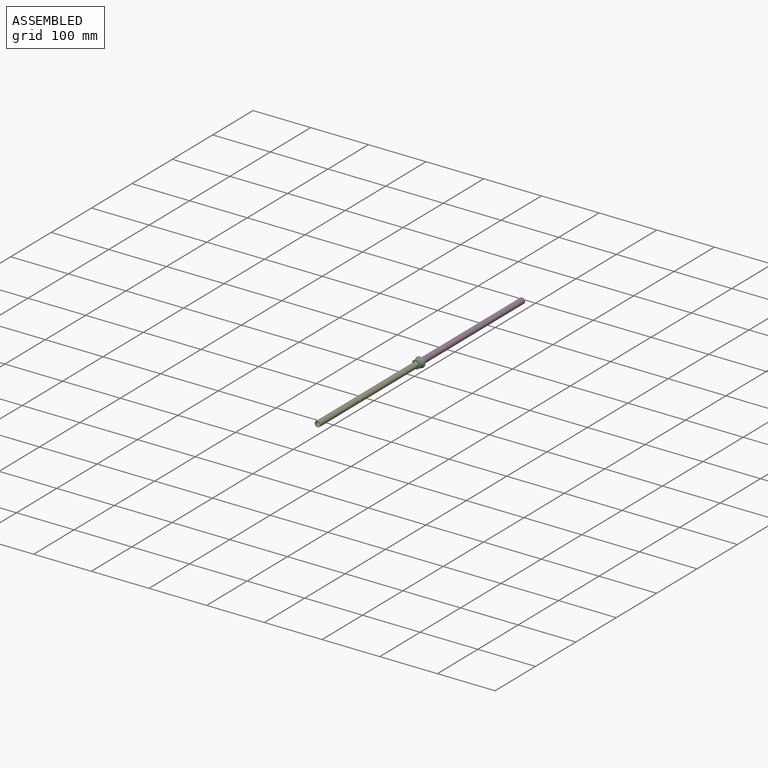
[diagram: assembled view]
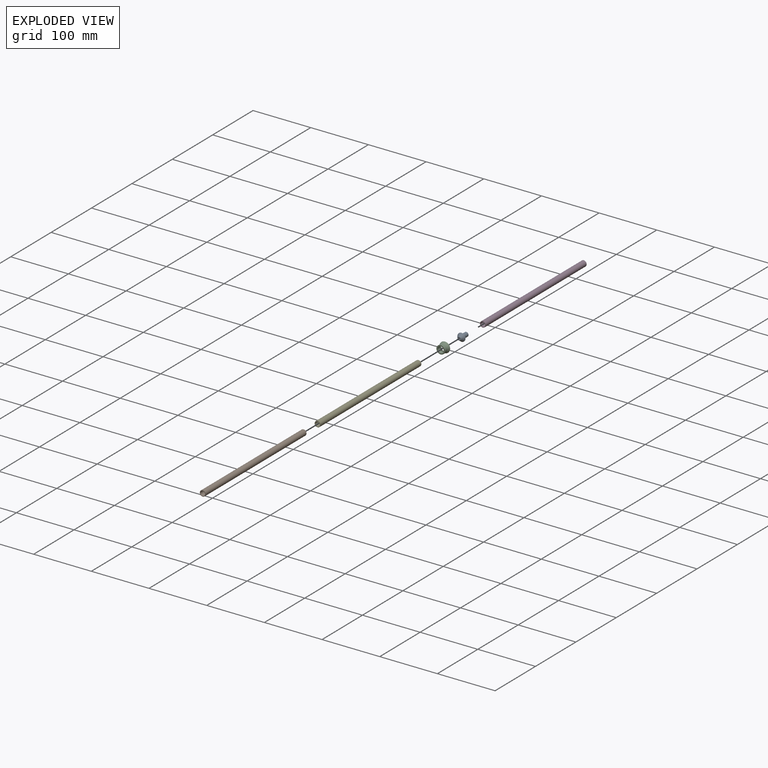
[diagram: exploded view]
GUIDED TOUR — FREECAD ASSEMBLY "banderole_elastique"

This assembly has 5 components, labeled P0..P4 below (a component is one placed body or linked part; the same part can appear more than once), held together by 0 modeled joints plus 10 derived contact edges. A joint is a constraint between two components; its type names the relative motion it leaves free:
  CONTACT — a derived adjacency edge — the two components touch in the source model (clearance under 2% of the assembly's diagonal); it is measured from the geometry, not a modeled constraint.
Axis/direction vectors are unit vectors and 'through' points are millimeter coordinates, both in the assembly's world frame.

MATES
  1. CONTACT "contact_0_1": P0 <-> P1, contact direction (0.000, -1.000, 0.000) through (0.47, 10.00, -3.72) mm (derived from contact, not a modeled constraint)
  2. CONTACT "contact_0_2": P0 <-> P2, contact direction (0.000, -1.000, 0.000) through (-7.10, 14.96, -0.35) mm (derived from contact, not a modeled constraint)
  3. CONTACT "contact_0_3": P0 <-> P3, contact direction (0.000, 1.000, 0.000) through (2.72, 16.00, 2.79) mm (derived from contact, not a modeled constraint)
  4. CONTACT "contact_0_4": P0 <-> P4, contact direction (0.000, -1.000, 0.000) through (0.47, 10.00, -3.72) mm (derived from contact, not a modeled constraint)
  5. CONTACT "contact_1_2": P1 <-> P2, contact direction (0.000, 1.000, 0.000) through (-0.68, 10.00, 3.84) mm (derived from contact, not a modeled constraint)
  6. CONTACT "contact_1_3": P1 <-> P3, contact direction (0.000, 1.000, 0.000) through (3.49, 13.50, 3.58) mm (derived from contact, not a modeled constraint)
  7. CONTACT "contact_1_4": P1 <-> P4, contact direction (0.000, 1.000, 0.000) through (5.00, -240.00, 0.00) mm (derived from contact, not a modeled constraint)
  8. CONTACT "contact_2_3": P2 <-> P3, contact direction (0.000, 1.000, 0.000) through (1.06, 15.96, 6.01) mm (derived from contact, not a modeled constraint)
  9. CONTACT "contact_2_4": P2 <-> P4, contact direction (0.000, -1.000, 0.000) through (-0.68, 10.00, 3.84) mm (derived from contact, not a modeled constraint)
  10. CONTACT "contact_3_4": P3 <-> P4, contact direction (0.000, -1.000, 0.000) through (-3.49, 13.50, 3.58) mm (derived from contact, not a modeled constraint)

ASSEMBLY ORDER
  1. P4 — the base component [order verified]
  2. P1 [order verified]
  3. P2 [order verified]
  4. P0 [order verified]
  5. P3 [order verified]
(P1, P2, P3 verified with a relaxed clearance tolerance: the source model stores slight part interference there.)
Order-tag legend:
  [order verified] — this step's position reverses a verified removal order: the component was checked to insert without passing through the ones already placed.

Of the 5 components, 4 carry a construction recipe — the FreeCAD feature program (sketches with constraints, then the solid features that consume them) that regenerates the part from scratch, quoted from this document or from the linked companion document it references; the rest are supplied as boundary geometry only. The tour below walks the components in assembly order: each is shown spotlighted twice — in the assembled view, then in the exploded view, where a leader line traces a displaced component back to its assembled socket (components that stay in place when exploded have no leader line; saturated green if recipe-attached, orange if geometry-only; every other component desaturated gray) — followed by its recipe or geometry summary and the mates that hold it.
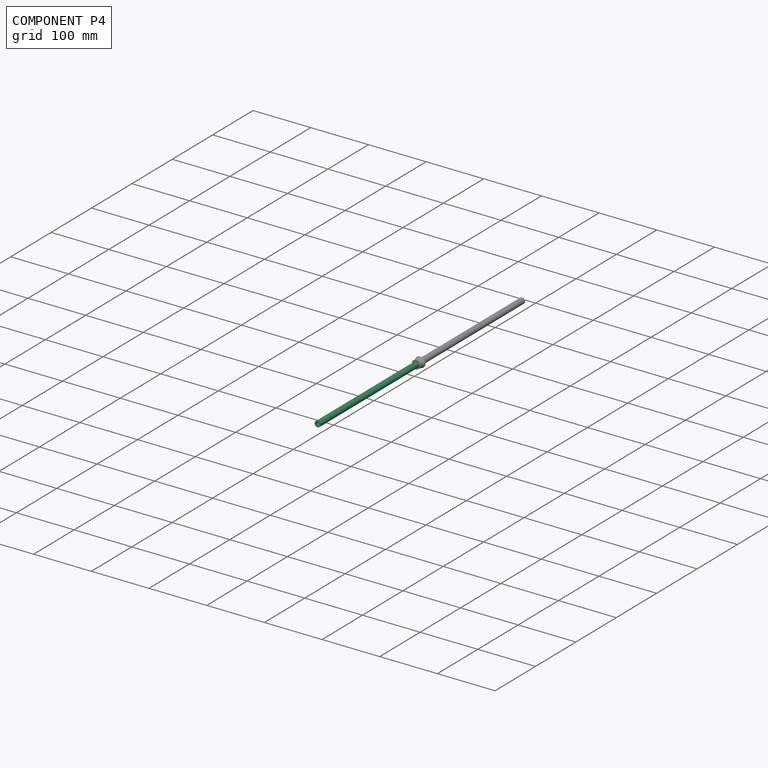
[diagram: component P4 — assembled]
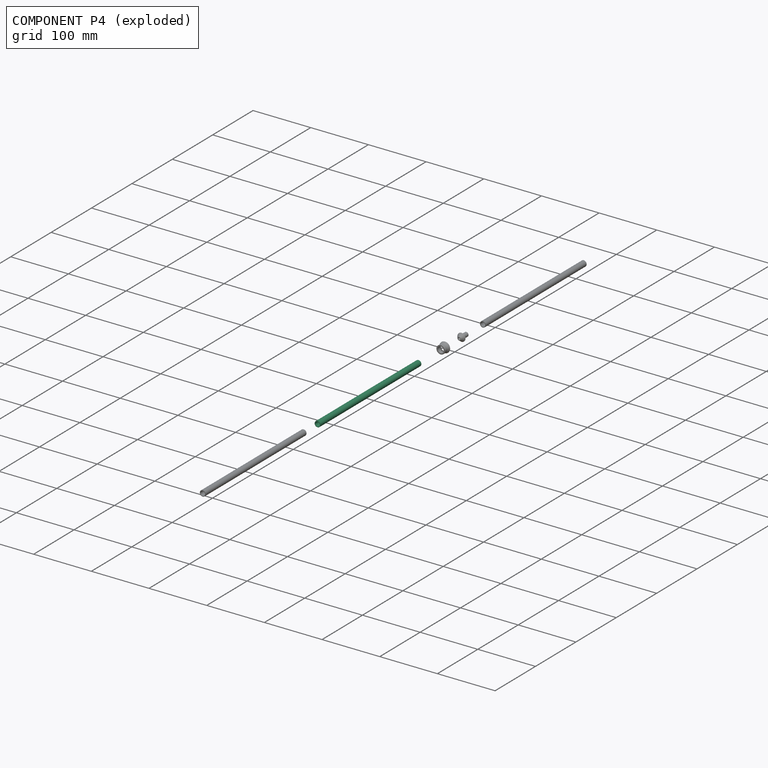
[diagram: component P4 — exploded]
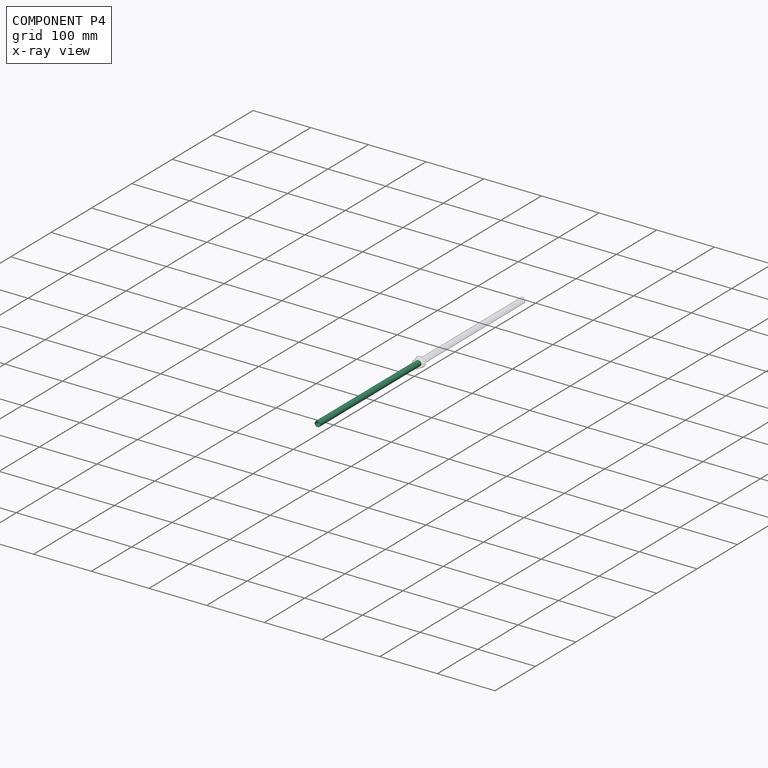
[diagram: component P4 — x-ray view]
COMPONENT P4 — recipe-attached ("Part", modeled in this document).
Held by: resting contact with P0 (derived edge); resting contact with P1 (derived edge); resting contact with P2 (derived edge); resting contact with P3 (derived edge).
Construction recipe (the document's own serialized feature program — sketch geometry with constraints, then the solid features built on it; lengths are millimeters unless a unit is written):

FEATURE [Sketcher::SketchObject] Sketch004
  ArcFitTolerance = 1e-06
  AttachmentSupport = -> [XY_Plane003]
  FullyConstrained = true
  MakeInternals = false
  MapMode = 5
  sketch-geometry (2):
    g0: Circle CenterX=0 CenterY=0 CenterZ=0 NormalX=0 NormalY=0 NormalZ=1 AngleXU=0 Radius=5
    g1: Circle CenterX=0 CenterY=0 CenterZ=0 NormalX=0 NormalY=0 NormalZ=1 AngleXU=0 Radius=4
  constraints (4):
    c: Coincident(g0,g-1)
    c: Coincident(g1,g0)
    c: Diameter(g0) = 10
    c: Diameter(g1) = 8
FEATURE [PartDesign::Pad] Pad
  Direction = (0,0,1)
  Length = 250
  Length2 = 10
  Profile = -> Sketch004
  ReferenceAxis = -> Sketch004 [N_Axis]
  Suppressed = false
  Type = 0
FEATURE [PartDesign::Body] Body002  label="Corps001"
  AllowCompound = false
  Group = -> [Sketch004,Pad]
  Origin = -> Origin003
  Placement = pos=(0,10,0) rot=(1,0,0;1.5708rad)
  Tip = -> Pad
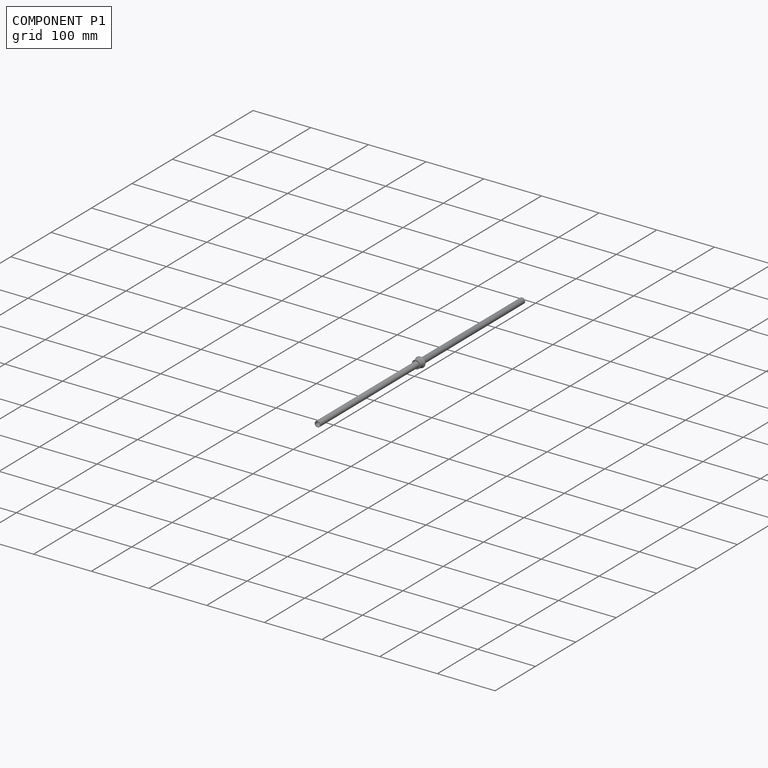
[diagram: component P1 — assembled]
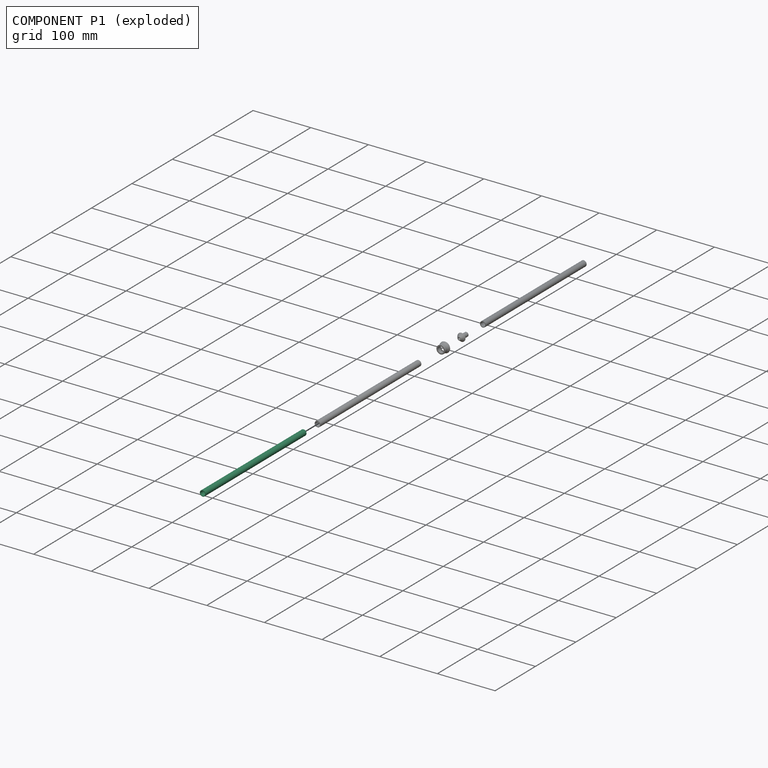
[diagram: component P1 — exploded]
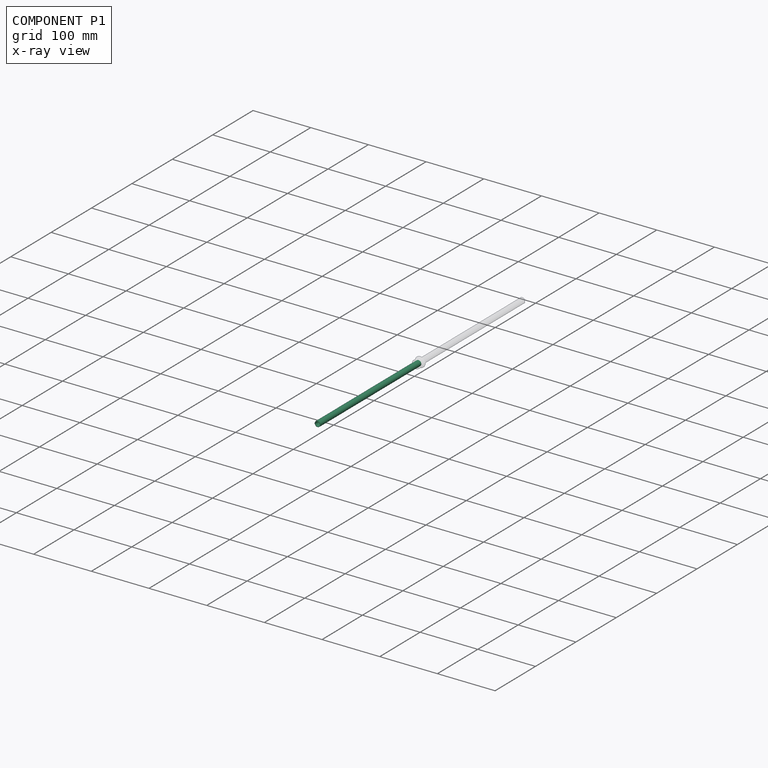
[diagram: component P1 — x-ray view]
COMPONENT P1 — recipe-attached ("Body002_CutLink", modeled in this document).
Held by: resting contact with P0 (derived edge); resting contact with P2 (derived edge); resting contact with P3 (derived edge); resting contact with P4 (derived edge).
Construction recipe (the document's own serialized feature program — sketch geometry with constraints, then the solid features built on it; lengths are millimeters unless a unit is written):

FEATURE [Sketcher::SketchObject] Sketch004
  ArcFitTolerance = 1e-06
  AttachmentSupport = -> [XY_Plane003]
  FullyConstrained = true
  MakeInternals = false
  MapMode = 5
  sketch-geometry (2):
    g0: Circle CenterX=0 CenterY=0 CenterZ=0 NormalX=0 NormalY=0 NormalZ=1 AngleXU=0 Radius=5
    g1: Circle CenterX=0 CenterY=0 CenterZ=0 NormalX=0 NormalY=0 NormalZ=1 AngleXU=0 Radius=4
  constraints (4):
    c: Coincident(g0,g-1)
    c: Coincident(g1,g0)
    c: Diameter(g0) = 10
    c: Diameter(g1) = 8
FEATURE [PartDesign::Pad] Pad
  Direction = (0,0,1)
  Length = 250
  Length2 = 10
  Profile = -> Sketch004
  ReferenceAxis = -> Sketch004 [N_Axis]
  Suppressed = false
  Type = 0
FEATURE [PartDesign::Body] Body002  label="Corps001"
  AllowCompound = false
  Group = -> [Sketch004,Pad]
  Origin = -> Origin003
  Placement = pos=(0,10,0) rot=(1,0,0;1.5708rad)
  Tip = -> Pad
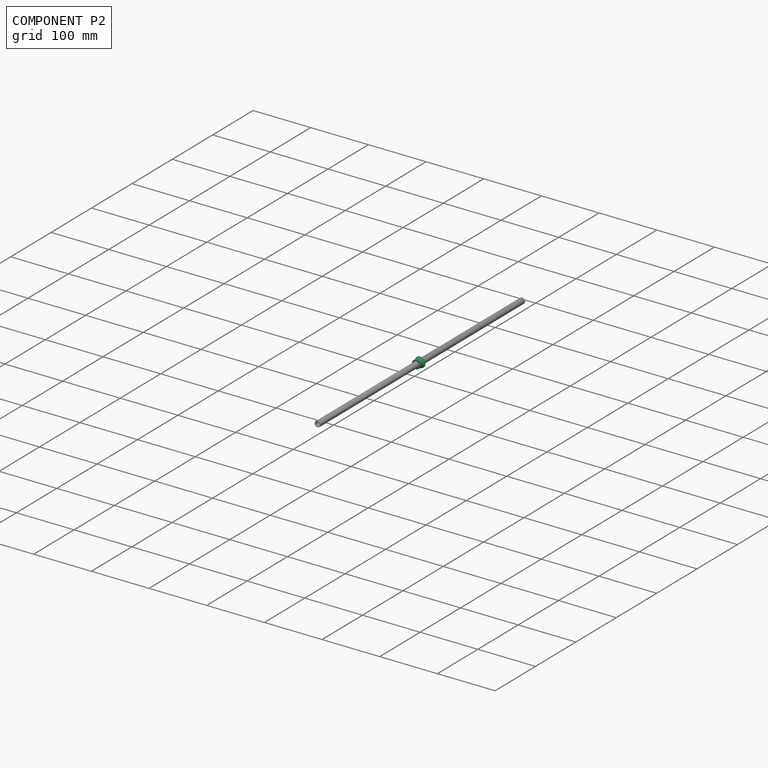
[diagram: component P2 — assembled]
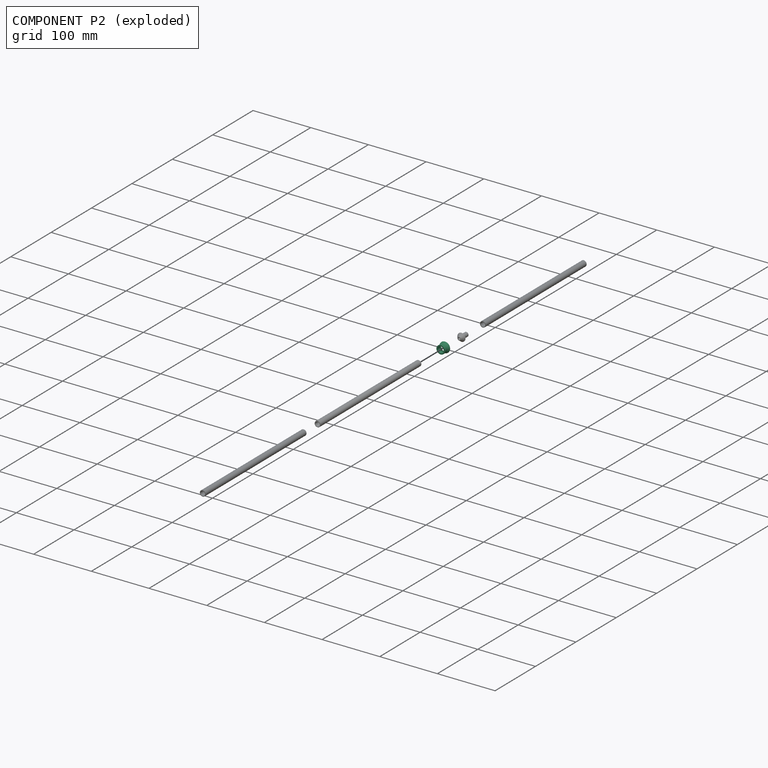
[diagram: component P2 — exploded]
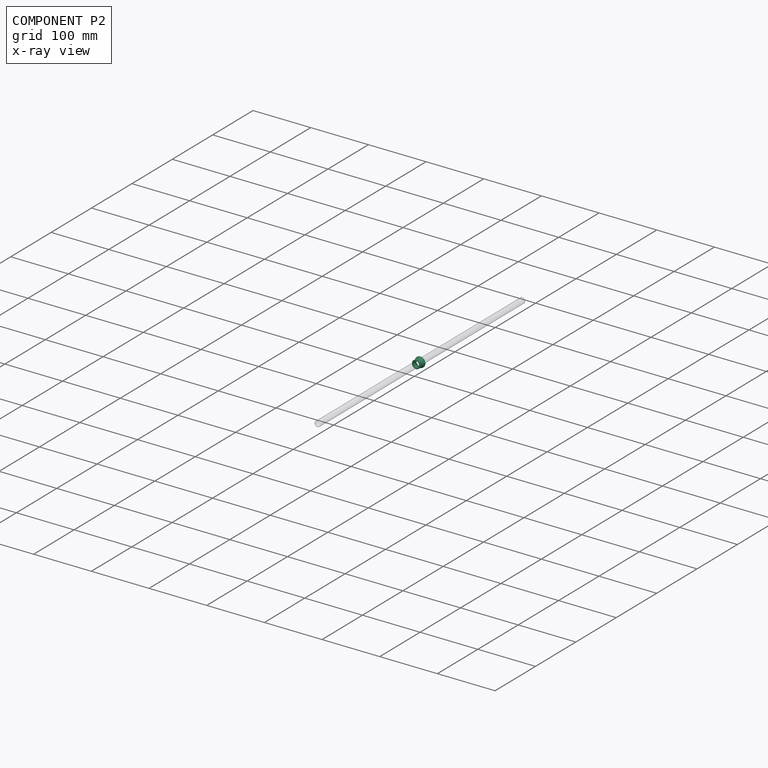
[diagram: component P2 — x-ray view]
COMPONENT P2 — recipe-attached ("Body_CutLink", modeled in this document).
Held by: resting contact with P0 (derived edge); resting contact with P1 (derived edge); resting contact with P3 (derived edge); resting contact with P4 (derived edge).
Construction recipe (the document's own serialized feature program — sketch geometry with constraints, then the solid features built on it; lengths are millimeters unless a unit is written):

FEATURE [Sketcher::SketchObject] Sketch
  ArcFitTolerance = 1e-06
  AttachmentSupport = -> [XY_Plane]
  FullyConstrained = true
  MakeInternals = false
  MapMode = 5
  sketch-geometry (8):
    g0: LineSegment StartX=-7.3 StartY=0 StartZ=0 EndX=-7.3 EndY=5.63584 EndZ=0
    g1: LineSegment StartX=-7.3 StartY=5.63584 StartZ=0 EndX=-8.9177 EndY=9.9309 EndZ=0
    g2: LineSegment StartX=-7.3 StartY=0 StartZ=0 EndX=-5.3 EndY=0 EndZ=0
    g3: LineSegment StartX=-5.3 StartY=0 StartZ=0 EndX=-5.3 EndY=6 EndZ=0
    g4: LineSegment [constr] StartX=-5.3 StartY=6 StartZ=0 EndX=-7.04605 EndY=10.6358 EndZ=0
    g5: ArcOfCircle CenterX=-7.98188 CenterY=10.2834 CenterZ=0 NormalX=0 NormalY=0 NormalZ=1 AngleXU=0 Radius=1 StartAngle=0.360209 EndAngle=3.5018
    g6: LineSegment StartX=-7.04605 StartY=10.6358 StartZ=0 EndX=-3.8 EndY=6 EndZ=0
    g7: LineSegment StartX=-3.8 StartY=6 StartZ=0 EndX=-5.3 EndY=6 EndZ=0
  constraints (22):
    c: PointOnObject(g0,g-1)
    c: Vertical(g0)
    c: Coincident(g1,g0)
    c: Coincident(g2,g0)
    c: PointOnObject(g2,g-1)
    c: Coincident(g3,g2)
    c: Vertical(g3)
    c: Coincident(g4,g3)
    c: Tangent(g1,g5) = 1.5708
    c: Tangent(g4,g5) = -1.5708
    c: Distance(g2,g-1) = 5.3
    c: Distance(g2,g2) = 2
    c: Distance(g1,g4) = 2
    c: DistanceY(g3,g3) = 6
    c: Parallel(g1,g4)
    c: DistanceY(g0,g4) = 5
    c: Coincident(g6,g4)
    c: Coincident(g7,g6)
    c: Coincident(g7,g3)
    c: Horizontal(g7)
    c: Angle(g6,g-1) = 0.959931
    c: DistanceX(g6,g-1) = 3.8
FEATURE [PartDesign::Revolution] Revolution
  Angle = 360
  Angle2 = 60
  Axis = (0,1,0)
  Base = (0,0,0)
  Profile = -> Sketch
  ReferenceAxis = -> Sketch [V_Axis]
  Suppressed = false
  Type = 0
FEATURE [PartDesign::Body] Body  label="entonoire_banderole"
  AllowCompound = false
  Group = -> [Sketch,Revolution]
  Origin = -> Origin
  Placement = pos=(0,4,0) rot=(0,0,1;0rad)
  Tip = -> Revolution
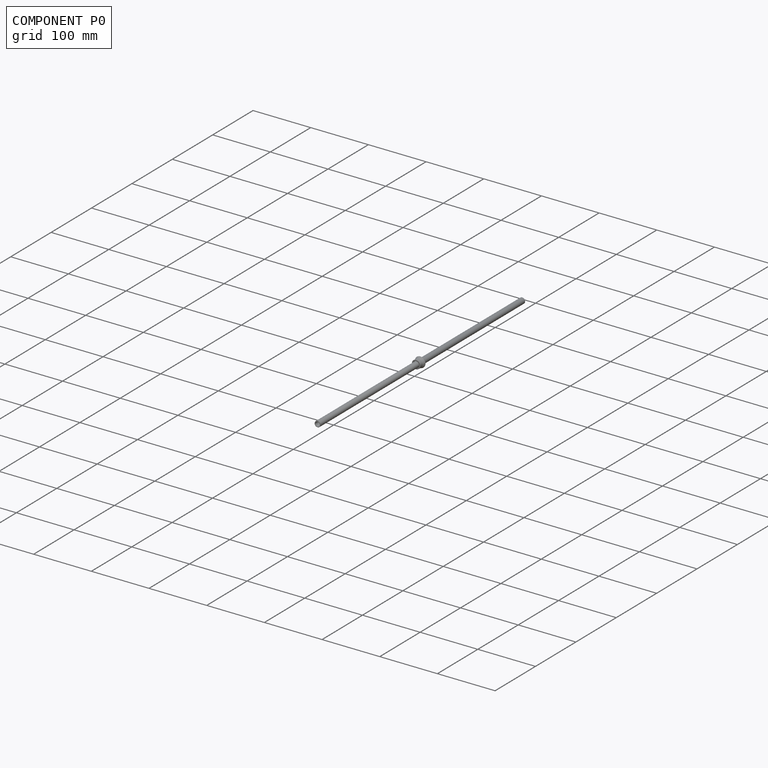
[diagram: component P0 — assembled]
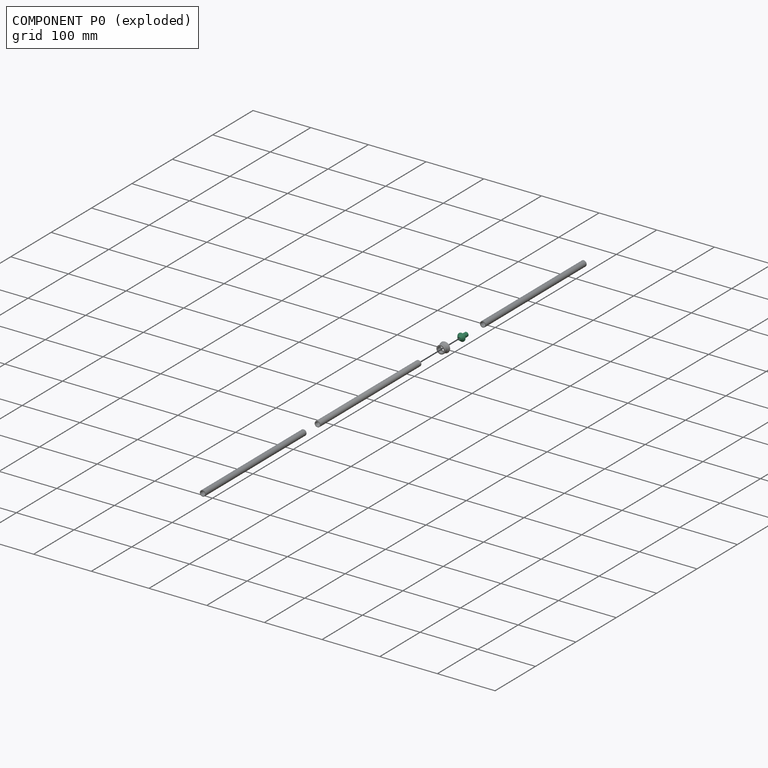
[diagram: component P0 — exploded]
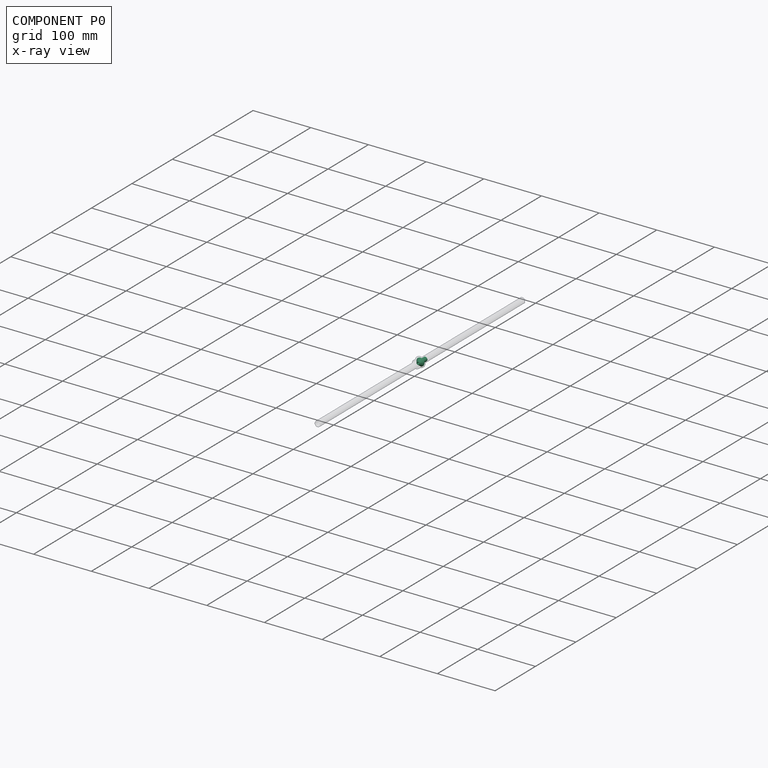
[diagram: component P0 — x-ray view]
COMPONENT P0 — recipe-attached ("Body001_CutLink", modeled in this document).
Held by: resting contact with P1 (derived edge); resting contact with P2 (derived edge); resting contact with P3 (derived edge); resting contact with P4 (derived edge).
Construction recipe (the document's own serialized feature program — sketch geometry with constraints, then the solid features built on it; lengths are millimeters unless a unit is written):

FEATURE [Sketcher::SketchObject] Sketch001
  ArcFitTolerance = 1e-06
  AttachmentSupport = -> [XY_Plane001]
  FullyConstrained = true
  MakeInternals = false
  MapMode = 5
  sketch-geometry (5):
    g0: LineSegment StartX=0 StartY=-12 StartZ=0 EndX=-3.8 EndY=-12 EndZ=0
    g1: LineSegment StartX=-3.8 StartY=0 StartZ=0 EndX=-3.8 EndY=-12 EndZ=0
    g2: LineSegment StartX=-3.8 StartY=0 StartZ=0 EndX=-7.00208 EndY=0 EndZ=0
    g3: LineSegment StartX=-7.00208 StartY=0 StartZ=0 EndX=0 EndY=10 EndZ=0
    g4: LineSegment StartX=0 StartY=10 StartZ=0 EndX=0 EndY=-12 EndZ=0
  constraints (15):
    c: PointOnObject(g0,g-2)
    c: Horizontal(g0)
    c: PointOnObject(g2,g-1)
    c: Coincident(g1,g0)
    c: PointOnObject(g2,g-1)
    c: Coincident(g3,g2)
    c: PointOnObject(g3,g-2)
    c: Coincident(g4,g3)
    c: Coincident(g4,g0)
    c: Vertical(g1)
    c: Angle(g-1,g3) = 0.959931
    c: DistanceY(g-1,g3) = 10
    c: DistanceX(g0,g0) = 3.8
    c: DistanceY(g1,g2) = 12
    c: Coincident(g1,g2)
FEATURE [PartDesign::Revolution] Revolution001
  Angle = 360
  Angle2 = 60
  Axis = (0,1,0)
  Base = (0,0,0)
  Profile = -> Sketch001
  ReferenceAxis = -> Sketch001 [V_Axis]
  Suppressed = false
  Type = 0
FEATURE [Sketcher::SketchObject] Sketch002
  ArcFitTolerance = 1e-06
  AttachmentSupport = -> [XZ_Plane001]
  FullyConstrained = true
  MakeInternals = false
  MapMode = 5
  Placement = pos=(0,0,0) rot=(1,0,0;1.5708rad)
  sketch-geometry (1):
    g0: Circle CenterX=0 CenterY=0 CenterZ=0 NormalX=0 NormalY=0 NormalZ=1 AngleXU=0 Radius=2
  constraints (2):
    c: Coincident(g0,g-1)
    c: Diameter(g0) = 4
FEATURE [PartDesign::Pocket] Pocket
  BaseFeature = -> Revolution001
  Direction = (0,1,-2e-16)
  Length = 5
  Length2 = 5
  Midplane = true
  Profile = -> Sketch002
  ReferenceAxis = -> Sketch002 [N_Axis]
  Suppressed = false
  Type = 1
FEATURE [Sketcher::SketchObject] Sketch003
  ArcFitTolerance = 1e-06
  AttachmentSupport = -> [XY_Plane001]
  FullyConstrained = false
  MakeInternals = false
  MapMode = 5
  sketch-geometry (4):
    g0: LineSegment StartX=-5 StartY=9.51684 StartZ=0 EndX=-5 EndY=6 EndZ=0
    g1: LineSegment StartX=-5 StartY=6 StartZ=0 EndX=5 EndY=6 EndZ=0
    g2: LineSegment StartX=5 StartY=6 StartZ=0 EndX=5 EndY=9.51684 EndZ=0
    g3: LineSegment StartX=5 StartY=9.51684 StartZ=0 EndX=-5 EndY=9.51684 EndZ=0
  constraints (10):
    c: Coincident(g0,g1)
    c: Coincident(g1,g2)
    c: Coincident(g2,g3)
    c: Coincident(g3,g0)
    c: Vertical(g0)
    c: Vertical(g2)
    c: Horizontal(g3)
    c: Symmetric(g1,g0,g-2)
    c: DistanceX(g3,g3) = 10
    c: DistanceY(g-1,g1) = 6
FEATURE [PartDesign::Pocket] Pocket001
  BaseFeature = -> Pocket
  Direction = (0,0,-1)
  Length = 5
  Length2 = 5
  Midplane = true
  Profile = -> Sketch003
  ReferenceAxis = -> Sketch003 [N_Axis]
  Suppressed = false
  Type = 1
FEATURE [PartDesign::Body] Body001  label="cone_banderole"
  AllowCompound = false
  Group = -> [Sketch001,Revolution001,Sketch002,Pocket,Sketch003,Pocket001]
  Origin = -> Origin001
  Placement = pos=(0,15,0) rot=(1,0,0;3.14159rad)
  Tip = -> Pocket001
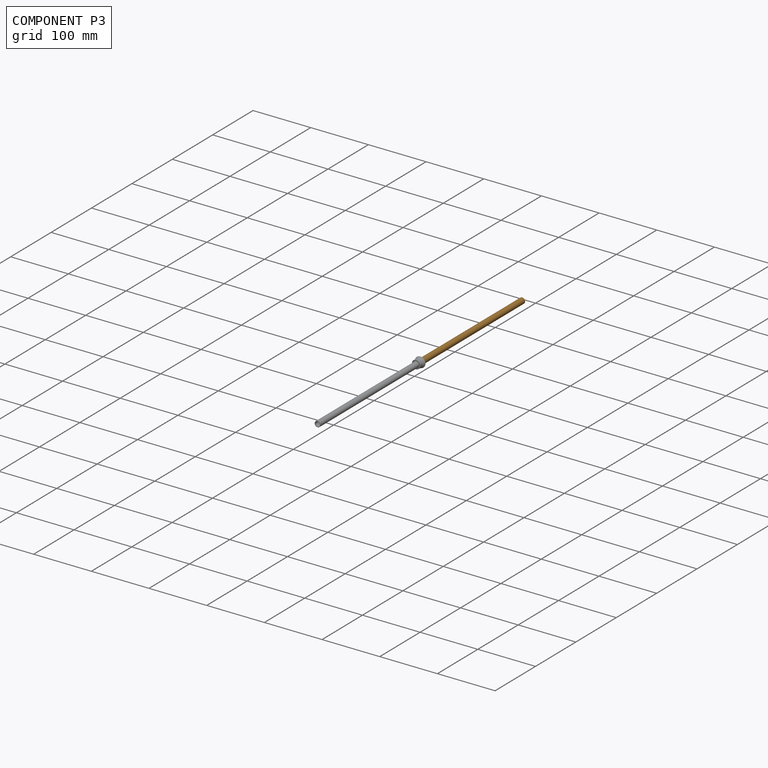
[diagram: component P3 — assembled]
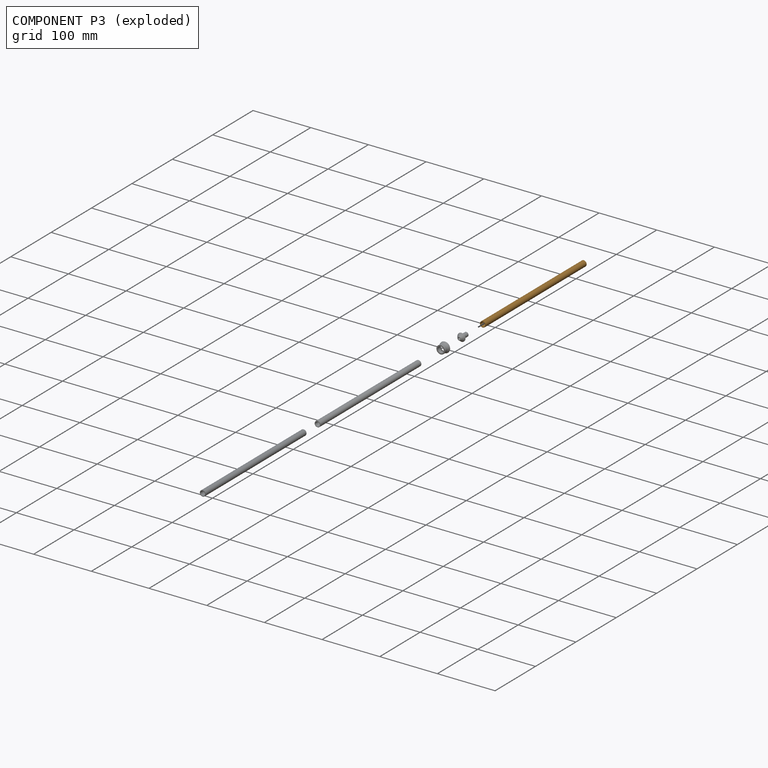
[diagram: component P3 — exploded]
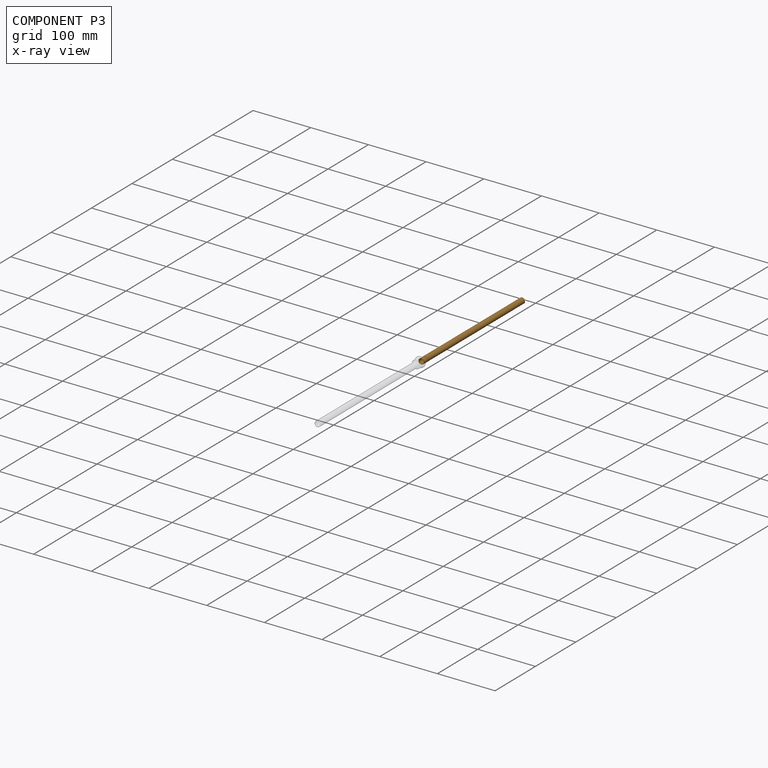
[diagram: component P3 — x-ray view]
COMPONENT P3 — geometry summary ("Corps002_CutLink"; no construction recipe available for this part):
  bounding box: 250.0 x 10.0 x 10.0 mm
  tessellated surface: 1,008 triangles
  volume: 7069 mm^3 (28% of its bounding box)
  symmetry: 2-fold rotationally symmetric about the x axis; revolution-symmetric about the y axis through its bounding-box center; mirror-symmetric across its x mid-plane, y mid-plane, z mid-plane
Held by: resting contact with P0 (derived edge); resting contact with P1 (derived edge); resting contact with P2 (derived edge); resting contact with P4 (derived edge).
PROVENANCE & LICENSES
Assembly and component geometry: a FreeCAD (.FCStd) document from a public repository crawl; components, placements and joints were extracted with FreeCAD and each solid tessellated.
Construction recipes: the document's own serialized feature recipes (and, for linked parts, the recipes of companion documents from the same project).
License: as declared in the source repository (recorded in the dataset sidecar).
Joints: native FreeCAD joints and A2plus constraints are mapped to standard mate types; edges marked 'derived from contact' connect touching components and are measured from the geometry, not modeled.
Verification: 4 of this assembly's 5 components carry a construction recipe (4 from this document itself); the rest are geometry-only. Every component's tessellation passed the extraction mesh gates (mesh-volume checksum against the B-rep where available, bounding-box inflation <= 2%).
Renders: orthographic iso camera (az 35 / el 25); the floor grid conveys scale (grid pitch printed in each image; no ruler). In the exploded view each component is displaced by its stored offset vector: the offsets alone carry the explosion direction (mate normal/axis signs are not orientation cues and do not encode it), and separation distances are assigned per mate-chain, not proportionally to assembly-order depth.
